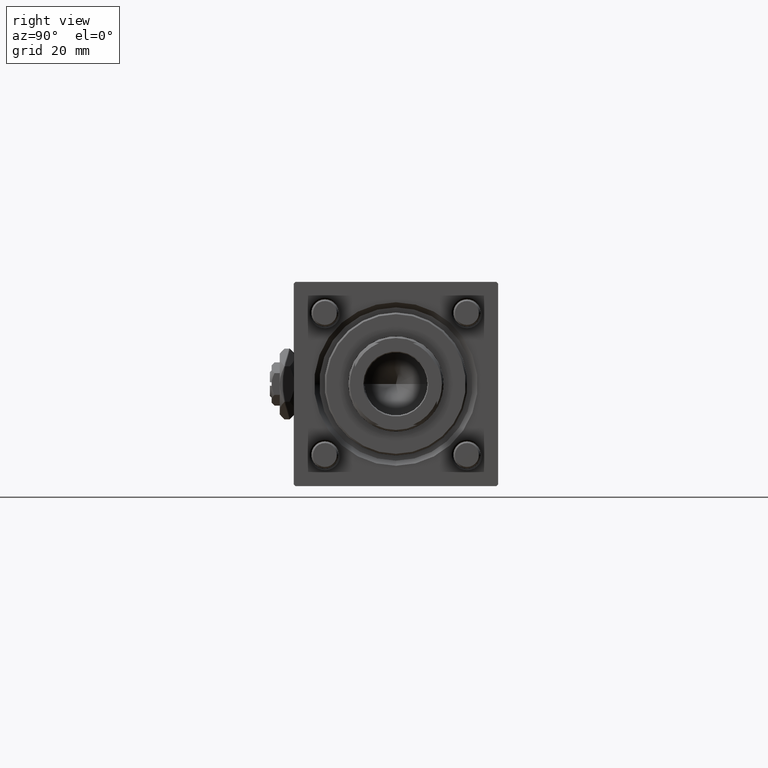
[diagram: clean part render]
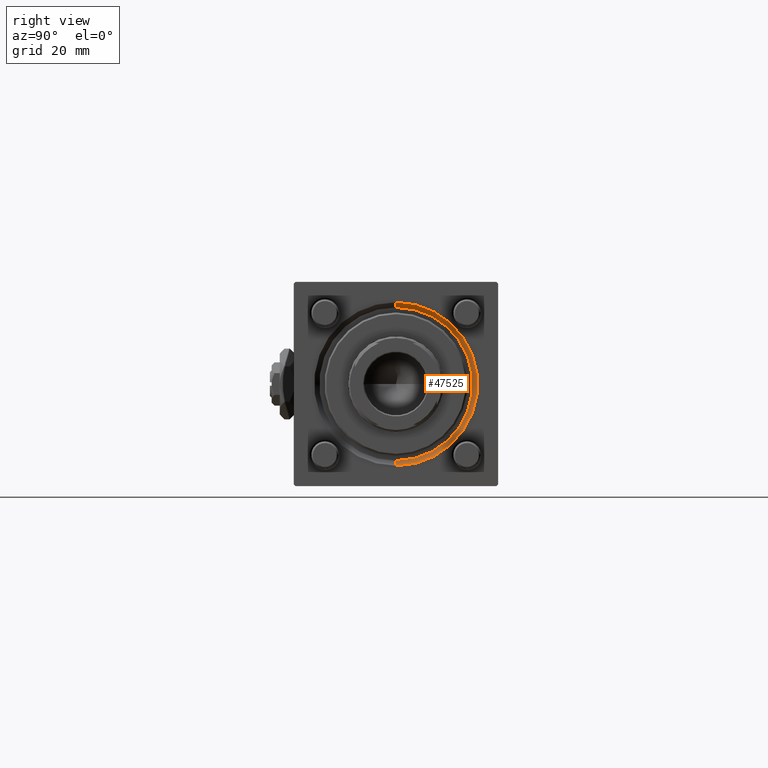
[diagram: same view with one face highlighted and labeled with its STEP entity id]
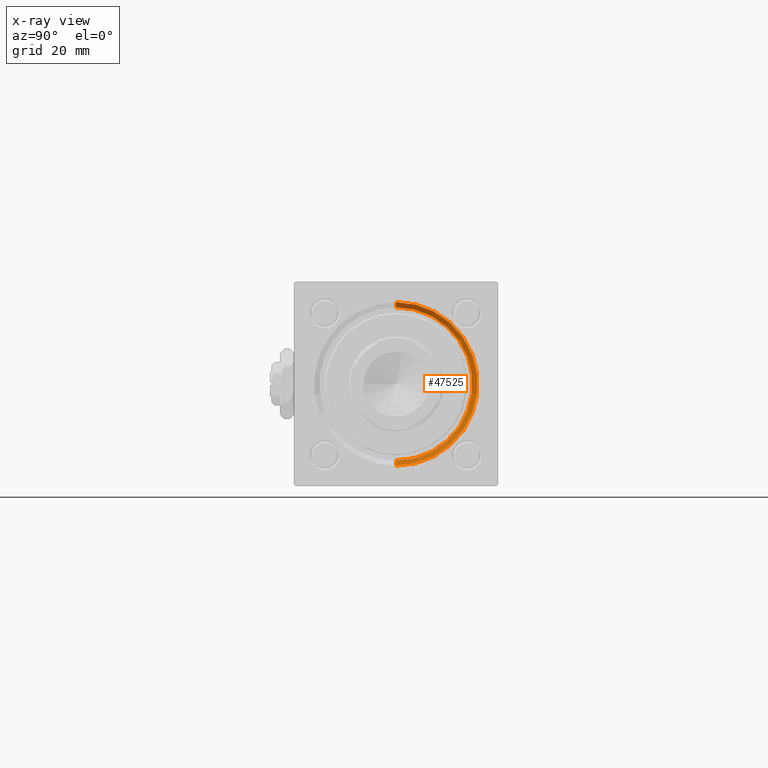
[diagram: x-ray of the same camera — body ghosted, the highlighted face saturated]
A machine part, right view. The second image highlights one B-rep face of the part: STEP entity #47525.
The next image is the same camera in x-ray: the body ghosted, the highlighted face saturated — about 0% of this face is hidden behind the body in this view.
In plain terms, the highlighted conical surface has half-angle 45 deg.
Its self-contained STEP definition (entity closure, byte-faithful):
#1002 = AXIS2_PLACEMENT_3D ( 'NONE', #11785, #21267, #39943 ) ;
#3844 = CIRCLE ( 'NONE', #1002, 22.50000000000000355 ) ;
#4223 = DIRECTION ( 'NONE',  ( 0.7071067811865524577, 8.659560562354874926E-17, 0.7071067811865426878 ) ) ;
#4510 = LINE ( 'NONE', #35920, #14139 ) ;
#9407 = AXIS2_PLACEMENT_3D ( 'NONE', #16633, #39178, #29098 ) ;
#10547 = CARTESIAN_POINT ( 'NONE',  ( 146.4999999999999432, 0.000000000000000000, -22.50000000000000355 ) ) ;
#11154 = ORIENTED_EDGE ( 'NONE', *, *, #28192, .F. ) ;
#11785 = CARTESIAN_POINT ( 'NONE',  ( 146.4999999999999432, 0.000000000000000000, 0.000000000000000000 ) ) ;
#13377 = ORIENTED_EDGE ( 'NONE', *, *, #51852, .T. ) ;
#14139 = VECTOR ( 'NONE', #4223, 1000.000000000000000 ) ;
#14923 = AXIS2_PLACEMENT_3D ( 'NONE', #26846, #17950, #36031 ) ;
#16633 = CARTESIAN_POINT ( 'NONE',  ( 148.0000000000000000, 0.000000000000000000, 0.000000000000000000 ) ) ;
#17861 = VERTEX_POINT ( 'NONE', #39570 ) ;
#17950 = DIRECTION ( 'NONE',  ( 1.000000000000000000, 0.000000000000000000, 0.000000000000000000 ) ) ;
#21267 = DIRECTION ( 'NONE',  ( 1.000000000000000000, 0.000000000000000000, 0.000000000000000000 ) ) ;
#24410 = CARTESIAN_POINT ( 'NONE',  ( 146.4999999999999432, 2.755455298081545172E-15, 22.50000000000000355 ) ) ;
#24834 = EDGE_CURVE ( 'NONE', #31552, #17861, #26471, .T. ) ;
#25640 = EDGE_CURVE ( 'NONE', #28957, #31552, #4510, .T. ) ;
#26204 = EDGE_LOOP ( 'NONE', ( #34794, #11154, #13377, #42401 ) ) ;
#26471 = CIRCLE ( 'NONE', #9407, 24.00000000000003908 ) ;
#26846 = CARTESIAN_POINT ( 'NONE',  ( 146.4999999999999432, 0.000000000000000000, 0.000000000000000000 ) ) ;
#28192 = EDGE_CURVE ( 'NONE', #28661, #28957, #3844, .T. ) ;
#28661 = VERTEX_POINT ( 'NONE', #10547 ) ;
#28957 = VERTEX_POINT ( 'NONE', #24410 ) ;
#29098 = DIRECTION ( 'NONE',  ( 0.000000000000000000, 0.000000000000000000, 1.000000000000000000 ) ) ;
#29697 = DIRECTION ( 'NONE',  ( 0.7071067811865524577, 0.000000000000000000, -0.7071067811865426878 ) ) ;
#31552 = VERTEX_POINT ( 'NONE', #38109 ) ;
#32432 = FACE_OUTER_BOUND ( 'NONE', #26204, .T. ) ;
#34130 = LINE ( 'NONE', #47176, #45216 ) ;
#34794 = ORIENTED_EDGE ( 'NONE', *, *, #25640, .F. ) ;
#35920 = CARTESIAN_POINT ( 'NONE',  ( 146.4999999999999432, 2.755455298081545172E-15, 22.50000000000000355 ) ) ;
#36031 = DIRECTION ( 'NONE',  ( 0.000000000000000000, 0.000000000000000000, -1.000000000000000000 ) ) ;
#38109 = CARTESIAN_POINT ( 'NONE',  ( 148.0000000000000000, 2.939152317953652628E-15, 24.00000000000003908 ) ) ;
#39178 = DIRECTION ( 'NONE',  ( -1.000000000000000000, 0.000000000000000000, -0.000000000000000000 ) ) ;
#39570 = CARTESIAN_POINT ( 'NONE',  ( 148.0000000000000000, 0.000000000000000000, -24.00000000000003908 ) ) ;
#39943 = DIRECTION ( 'NONE',  ( 0.000000000000000000, 0.000000000000000000, 1.000000000000000000 ) ) ;
#42401 = ORIENTED_EDGE ( 'NONE', *, *, #24834, .F. ) ;
#45216 = VECTOR ( 'NONE', #29697, 1000.000000000000000 ) ;
#47176 = CARTESIAN_POINT ( 'NONE',  ( 146.4999999999999432, 0.000000000000000000, -22.50000000000000355 ) ) ;
#47525 = ADVANCED_FACE ( 'NONE', ( #32432 ), #56503, .F. ) ;
#51852 = EDGE_CURVE ( 'NONE', #28661, #17861, #34130, .T. ) ;
#56503 = CONICAL_SURFACE ( 'NONE', #14923, 22.50000000000000355, 0.7853981633974415066 ) ;